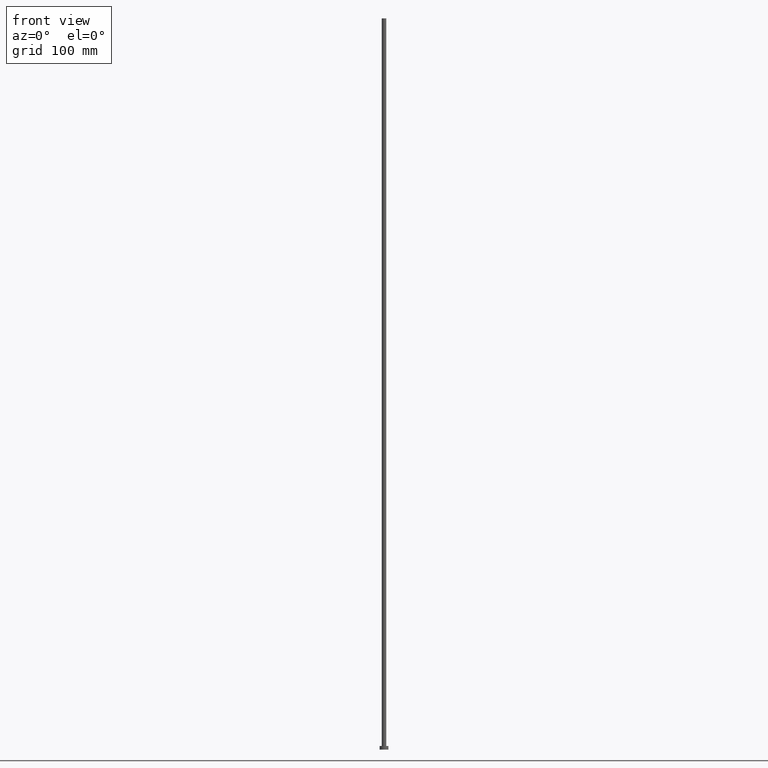
[diagram: clean part render]
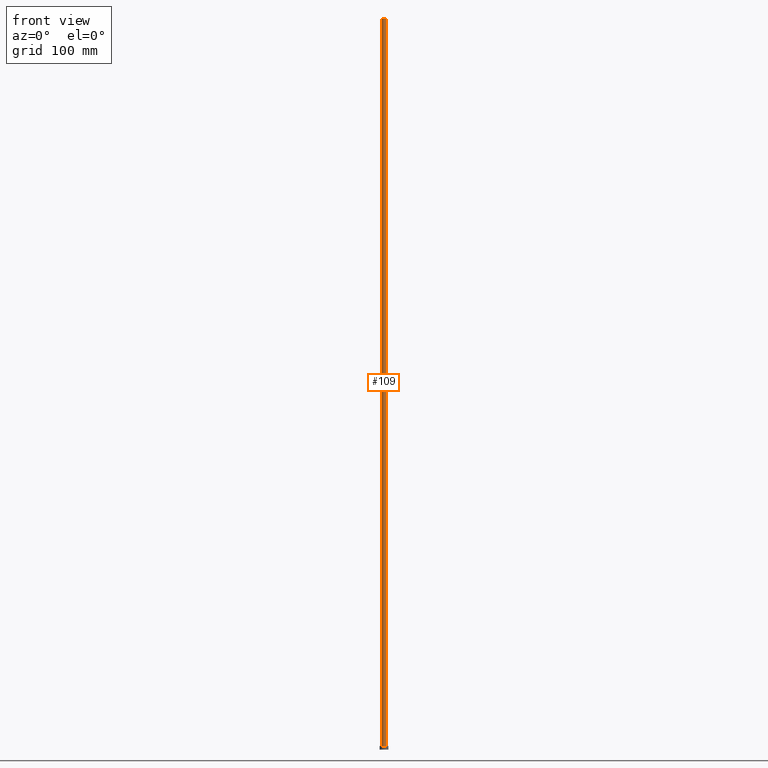
[diagram: same view with one face highlighted and labeled with its STEP entity id]
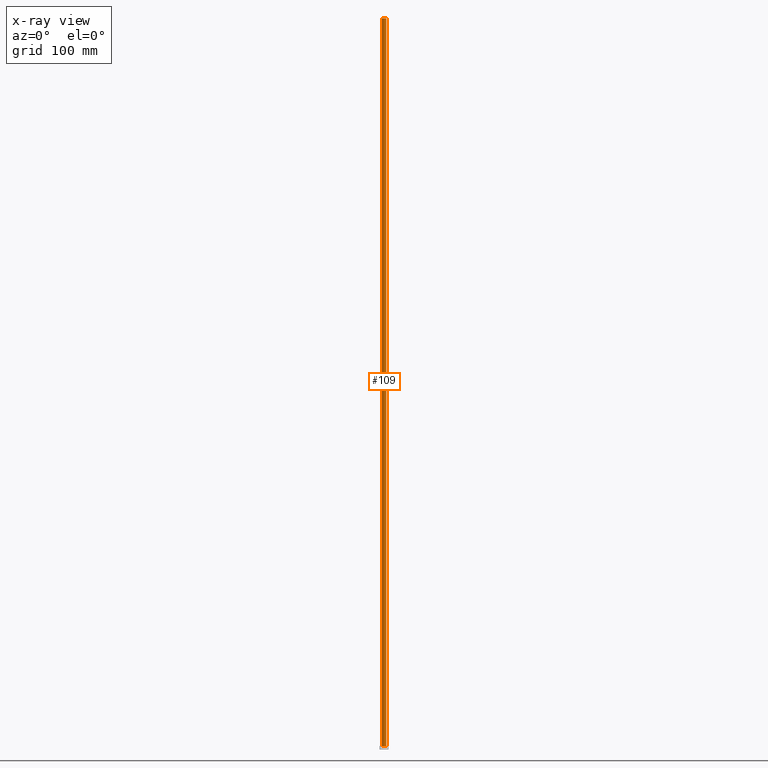
[diagram: x-ray of the same camera — body ghosted, the highlighted face saturated]
A machine part, front view. The second image highlights one B-rep face of the part: STEP entity #109.
The next image is the same camera in x-ray: the body ghosted, the highlighted face saturated — about 0% of this face is hidden behind the body in this view.
In plain terms, the highlighted cylindrical surface (edge-blend (fillet) strip) has radius 3 mm, axis along (-0, -0, -1).
Its self-contained STEP definition (entity closure, byte-faithful):
#6 = DIRECTION ( 'NONE',  ( 1.000000000000000000, 0.000000000000000000, 0.000000000000000000 ) ) ;
#9 = ORIENTED_EDGE ( 'NONE', *, *, #117, .T. ) ;
#11 = ORIENTED_EDGE ( 'NONE', *, *, #237, .T. ) ;
#18 = VERTEX_POINT ( 'NONE', #20 ) ;
#19 = CIRCLE ( 'NONE', #69, 3.000000000000000444 ) ;
#20 = CARTESIAN_POINT ( 'NONE',  ( -3.000000000000000444, 0.000000000000000000, 5.000000000000000000 ) ) ;
#41 = DIRECTION ( 'NONE',  ( -0.000000000000000000, -0.000000000000000000, -1.000000000000000000 ) ) ;
#43 = DIRECTION ( 'NONE',  ( 0.000000000000000000, 0.000000000000000000, 1.000000000000000000 ) ) ;
#51 = VECTOR ( 'NONE', #249, 1000.000000000000000 ) ;
#53 = DIRECTION ( 'NONE',  ( -1.000000000000000000, 0.000000000000000000, 0.000000000000000000 ) ) ;
#54 = EDGE_CURVE ( 'NONE', #67, #56, #199, .T. ) ;
#56 = VERTEX_POINT ( 'NONE', #116 ) ;
#60 = EDGE_LOOP ( 'NONE', ( #83, #71, #11, #9 ) ) ;
#61 = LINE ( 'NONE', #161, #121 ) ;
#67 = VERTEX_POINT ( 'NONE', #129 ) ;
#69 = AXIS2_PLACEMENT_3D ( 'NONE', #142, #175, #6 ) ;
#71 = ORIENTED_EDGE ( 'NONE', *, *, #54, .F. ) ;
#72 = AXIS2_PLACEMENT_3D ( 'NONE', #174, #43, #139 ) ;
#83 = ORIENTED_EDGE ( 'NONE', *, *, #230, .F. ) ;
#86 = CARTESIAN_POINT ( 'NONE',  ( 3.000000000000000444, 3.673940397442059868E-16, 1000.000000000000000 ) ) ;
#106 = LINE ( 'NONE', #86, #51 ) ;
#109 = ADVANCED_FACE ( 'NONE', ( #180 ), #234, .T. ) ;
#114 = DIRECTION ( 'NONE',  ( -0.000000000000000000, -0.000000000000000000, -1.000000000000000000 ) ) ;
#116 = CARTESIAN_POINT ( 'NONE',  ( 3.000000000000000444, 3.673940397442059868E-16, 1000.000000000000000 ) ) ;
#117 = EDGE_CURVE ( 'NONE', #18, #191, #19, .T. ) ;
#121 = VECTOR ( 'NONE', #41, 1000.000000000000000 ) ;
#129 = CARTESIAN_POINT ( 'NONE',  ( -3.000000000000000444, 0.000000000000000000, 1000.000000000000000 ) ) ;
#136 = CARTESIAN_POINT ( 'NONE',  ( 0.000000000000000000, 0.000000000000000000, 1000.000000000000000 ) ) ;
#138 = AXIS2_PLACEMENT_3D ( 'NONE', #136, #114, #53 ) ;
#139 = DIRECTION ( 'NONE',  ( 1.000000000000000000, 0.000000000000000000, 0.000000000000000000 ) ) ;
#142 = CARTESIAN_POINT ( 'NONE',  ( 0.000000000000000000, 0.000000000000000000, 5.000000000000000000 ) ) ;
#161 = CARTESIAN_POINT ( 'NONE',  ( -3.000000000000000444, 0.000000000000000000, 1000.000000000000000 ) ) ;
#174 = CARTESIAN_POINT ( 'NONE',  ( 0.000000000000000000, 0.000000000000000000, 1000.000000000000000 ) ) ;
#175 = DIRECTION ( 'NONE',  ( 0.000000000000000000, 0.000000000000000000, 1.000000000000000000 ) ) ;
#180 = FACE_OUTER_BOUND ( 'NONE', #60, .T. ) ;
#191 = VERTEX_POINT ( 'NONE', #212 ) ;
#199 = CIRCLE ( 'NONE', #72, 3.000000000000000444 ) ;
#212 = CARTESIAN_POINT ( 'NONE',  ( 3.000000000000000444, 3.673940397442059868E-16, 5.000000000000000000 ) ) ;
#230 = EDGE_CURVE ( 'NONE', #56, #191, #106, .T. ) ;
#234 = CYLINDRICAL_SURFACE ( 'NONE', #138, 3.000000000000000444 ) ;
#237 = EDGE_CURVE ( 'NONE', #67, #18, #61, .T. ) ;
#249 = DIRECTION ( 'NONE',  ( -0.000000000000000000, -0.000000000000000000, -1.000000000000000000 ) ) ;